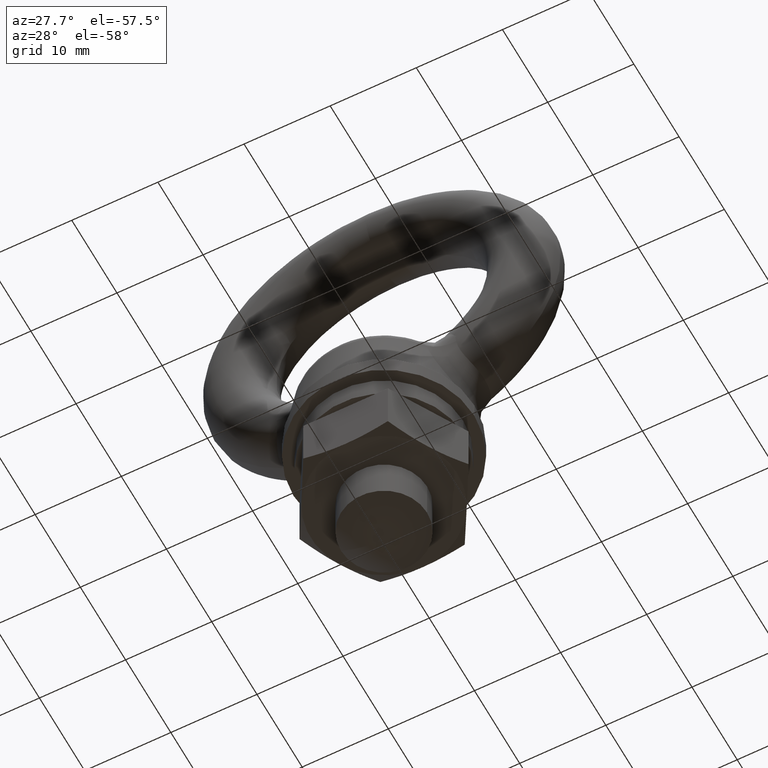
[diagram: clean part render]
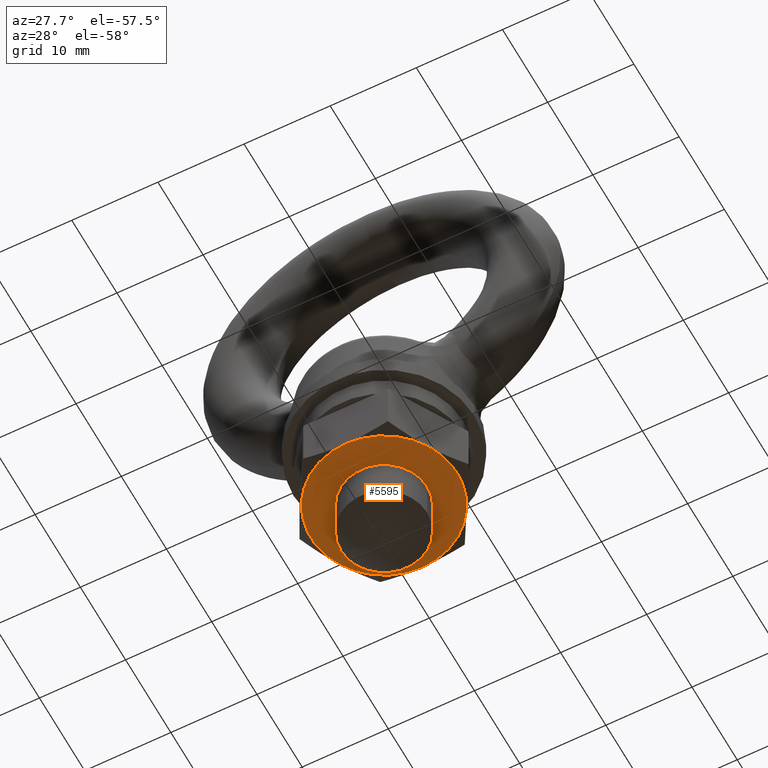
[diagram: same view with one face highlighted and labeled with its STEP entity id]
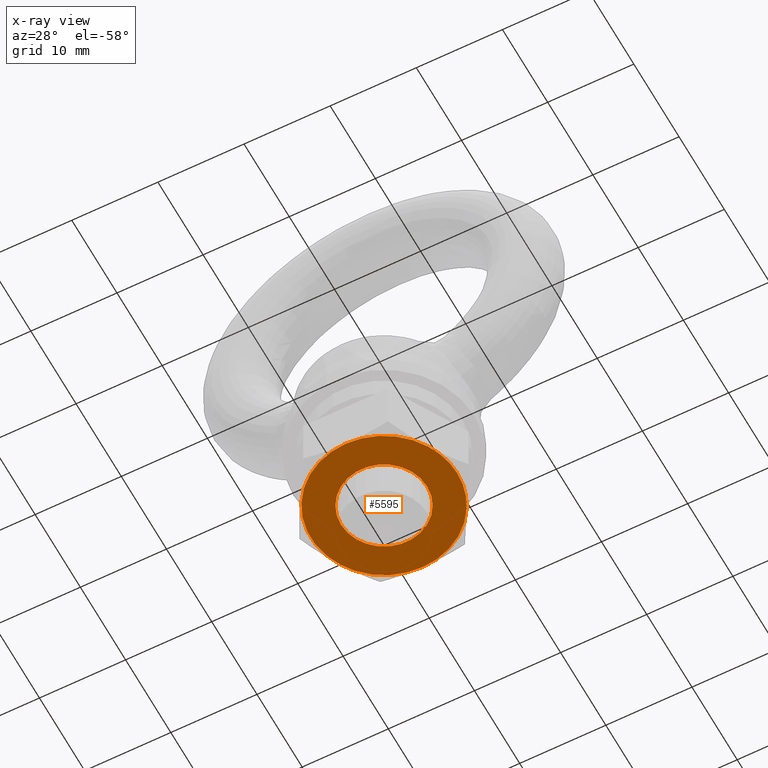
[diagram: x-ray of the same camera — body ghosted, the highlighted face saturated]
A machine part, auxiliary view. The second image highlights one B-rep face of the part: STEP entity #5595.
The next image is the same camera in x-ray: the body ghosted, the highlighted face saturated — about 0% of this face is hidden behind the body in this view.
In plain terms, the highlighted planar face has unit normal (0, 0, 1).
Its self-contained STEP definition (entity closure, byte-faithful):
#2118 = DIRECTION ( 'NONE',  ( 1.000000000000000000, -5.329070518200752200E-015, 0.0000000000000000000 ) ) ;
#2119 = DIRECTION ( 'NONE',  ( 0.0000000000000000000, 0.0000000000000000000, -1.000000000000000000 ) ) ;
#2120 = CARTESIAN_POINT ( 'NONE',  ( 0.0000000000000000000, 0.0000000000000000000, -32.50000000000000000 ) ) ;
#2121 = AXIS2_PLACEMENT_3D ( 'NONE', #2120, #2119, #2118 ) ;
#2122 = CIRCLE ( 'NONE', #2121, 8.500000000000000000 ) ;
#2297 = CARTESIAN_POINT ( 'NONE',  ( 0.0000000000000000000, 0.0000000000000000000, -32.50000000000000000 ) ) ;
#2325 = DIRECTION ( 'NONE',  ( 0.0000000000000000000, 0.0000000000000000000, -1.000000000000000000 ) ) ;
#2326 = AXIS2_PLACEMENT_3D ( 'NONE', #2297, #2325, #2602 ) ;
#2327 = CIRCLE ( 'NONE', #2326, 5.000000000000000000 ) ;
#2421 = CARTESIAN_POINT ( 'NONE',  ( 5.000000000000000000, 6.123031769111886300E-016, -32.50000000000000000 ) ) ;
#2602 = DIRECTION ( 'NONE',  ( 1.000000000000000000, 0.0000000000000000000, 0.0000000000000000000 ) ) ;
#2762 = CARTESIAN_POINT ( 'NONE',  ( -5.000000000000000000, 0.0000000000000000000, -32.50000000000000000 ) ) ;
#2823 = CARTESIAN_POINT ( 'NONE',  ( -7.361216790209609500, -4.249998513827519800, -32.50000000000000000 ) ) ;
#2824 = CARTESIAN_POINT ( 'NONE',  ( 0.0000000000000000000, 0.0000000000000000000, -32.50000000000000000 ) ) ;
#2825 = AXIS2_PLACEMENT_3D ( 'NONE', #2824, #2855, #2854 ) ;
#2826 = CIRCLE ( 'NONE', #2825, 8.500000000000000000 ) ;
#2852 = CARTESIAN_POINT ( 'NONE',  ( 7.361216790209609500, -4.249998513827519800, -32.50000000000000000 ) ) ;
#2853 = CARTESIAN_POINT ( 'NONE',  ( 8.500000000000000000, 0.0000000000000000000, -32.50000000000000000 ) ) ;
#2854 = DIRECTION ( 'NONE',  ( 1.000000000000000000, 0.0000000000000000000, 0.0000000000000000000 ) ) ;
#2855 = DIRECTION ( 'NONE',  ( 0.0000000000000000000, 0.0000000000000000000, -1.000000000000000000 ) ) ;
#3511 = DIRECTION ( 'NONE',  ( 1.000000000000000000, 0.0000000000000000000, 0.0000000000000000000 ) ) ;
#3512 = DIRECTION ( 'NONE',  ( 0.0000000000000000000, 0.0000000000000000000, -1.000000000000000000 ) ) ;
#3513 = CARTESIAN_POINT ( 'NONE',  ( 0.0000000000000000000, 0.0000000000000000000, -32.50000000000000000 ) ) ;
#3514 = AXIS2_PLACEMENT_3D ( 'NONE', #3513, #3512, #3511 ) ;
#3536 = FACE_OUTER_BOUND ( 'NONE', #5600, .T. ) ;
#3537 = FACE_BOUND ( 'NONE', #5596, .T. ) ;
#3598 = CIRCLE ( 'NONE', #3514, 5.000000000000000000 ) ;
#3599 = DIRECTION ( 'NONE',  ( 1.000000000000000000, 0.0000000000000000000, 0.0000000000000000000 ) ) ;
#3600 = DIRECTION ( 'NONE',  ( 0.0000000000000000000, 0.0000000000000000000, 1.000000000000000000 ) ) ;
#3601 = CARTESIAN_POINT ( 'NONE',  ( 0.0000000000000000000, 0.0000000000000000000, -32.50000000000000000 ) ) ;
#3602 = AXIS2_PLACEMENT_3D ( 'NONE', #3601, #3600, #3599 ) ;
#3603 = PLANE ( 'NONE',  #3602 ) ;
#4650 = DIRECTION ( 'NONE',  ( 1.000000000000000000, 1.776356839400250500E-015, 0.0000000000000000000 ) ) ;
#4651 = DIRECTION ( 'NONE',  ( 0.0000000000000000000, 0.0000000000000000000, -1.000000000000000000 ) ) ;
#4652 = CARTESIAN_POINT ( 'NONE',  ( 0.0000000000000000000, 0.0000000000000000000, -32.50000000000000000 ) ) ;
#4653 = AXIS2_PLACEMENT_3D ( 'NONE', #4652, #4651, #4650 ) ;
#4654 = CIRCLE ( 'NONE', #4653, 8.500000000000000000 ) ;
#4655 = DIRECTION ( 'NONE',  ( -1.000000000000000000, 0.0000000000000000000, 0.0000000000000000000 ) ) ;
#4656 = DIRECTION ( 'NONE',  ( 0.0000000000000000000, 0.0000000000000000000, -1.000000000000000000 ) ) ;
#4657 = CARTESIAN_POINT ( 'NONE',  ( 0.0000000000000000000, 0.0000000000000000000, -32.50000000000000000 ) ) ;
#4658 = AXIS2_PLACEMENT_3D ( 'NONE', #4657, #4656, #4655 ) ;
#4659 = CIRCLE ( 'NONE', #4658, 8.500000000000000000 ) ;
#4665 = CARTESIAN_POINT ( 'NONE',  ( 0.0000000000000000000, 8.500000000000000000, -32.50000000000000000 ) ) ;
#4679 = DIRECTION ( 'NONE',  ( 1.000000000000000000, 1.776356839400250500E-015, 0.0000000000000000000 ) ) ;
#4680 = DIRECTION ( 'NONE',  ( 0.0000000000000000000, 0.0000000000000000000, -1.000000000000000000 ) ) ;
#4681 = CARTESIAN_POINT ( 'NONE',  ( 0.0000000000000000000, 0.0000000000000000000, -32.50000000000000000 ) ) ;
#4682 = AXIS2_PLACEMENT_3D ( 'NONE', #4681, #4680, #4679 ) ;
#4683 = CIRCLE ( 'NONE', #4682, 8.500000000000000000 ) ;
#4684 = DIRECTION ( 'NONE',  ( 1.000000000000000000, 0.0000000000000000000, 0.0000000000000000000 ) ) ;
#4685 = DIRECTION ( 'NONE',  ( 0.0000000000000000000, 0.0000000000000000000, -1.000000000000000000 ) ) ;
#4686 = CARTESIAN_POINT ( 'NONE',  ( 0.0000000000000000000, 0.0000000000000000000, -32.50000000000000000 ) ) ;
#4687 = AXIS2_PLACEMENT_3D ( 'NONE', #4686, #4685, #4684 ) ;
#4688 = CIRCLE ( 'NONE', #4687, 8.500000000000000000 ) ;
#4689 = DIRECTION ( 'NONE',  ( 1.000000000000000000, 0.0000000000000000000, 0.0000000000000000000 ) ) ;
#4690 = DIRECTION ( 'NONE',  ( 0.0000000000000000000, 0.0000000000000000000, -1.000000000000000000 ) ) ;
#4691 = CARTESIAN_POINT ( 'NONE',  ( 0.0000000000000000000, 0.0000000000000000000, -32.50000000000000000 ) ) ;
#4692 = AXIS2_PLACEMENT_3D ( 'NONE', #4691, #4690, #4689 ) ;
#4694 = CIRCLE ( 'NONE', #4692, 8.500000000000000000 ) ;
#4705 = CARTESIAN_POINT ( 'NONE',  ( -7.361216790209609500, 4.249998513827519800, -32.50000000000000000 ) ) ;
#4791 = CARTESIAN_POINT ( 'NONE',  ( 7.361216790209609500, 4.249998513827519800, -32.50000000000000000 ) ) ;
#4843 = CARTESIAN_POINT ( 'NONE',  ( 0.0000000000000000000, -8.500000000000000000, -32.50000000000000000 ) ) ;
#5311 = ORIENTED_EDGE ( 'NONE', *, *, #5312, .T. ) ;
#5312 = EDGE_CURVE ( 'NONE', #5529, #5400, #2122, .T. ) ;
#5313 = ORIENTED_EDGE ( 'NONE', *, *, #5399, .T. ) ;
#5365 = ORIENTED_EDGE ( 'NONE', *, *, #5570, .T. ) ;
#5366 = VERTEX_POINT ( 'NONE', #2421 ) ;
#5368 = EDGE_CURVE ( 'NONE', #5366, #5369, #2327, .T. ) ;
#5369 = VERTEX_POINT ( 'NONE', #2762 ) ;
#5397 = VERTEX_POINT ( 'NONE', #2823 ) ;
#5399 = EDGE_CURVE ( 'NONE', #5400, #5401, #2826, .T. ) ;
#5400 = VERTEX_POINT ( 'NONE', #2853 ) ;
#5401 = VERTEX_POINT ( 'NONE', #2852 ) ;
#5513 = VERTEX_POINT ( 'NONE', #4843 ) ;
#5529 = VERTEX_POINT ( 'NONE', #4791 ) ;
#5557 = VERTEX_POINT ( 'NONE', #4665 ) ;
#5565 = VERTEX_POINT ( 'NONE', #4705 ) ;
#5570 = EDGE_CURVE ( 'NONE', #5401, #5513, #4694, .T. ) ;
#5571 = ORIENTED_EDGE ( 'NONE', *, *, #5572, .T. ) ;
#5572 = EDGE_CURVE ( 'NONE', #5513, #5397, #4688, .T. ) ;
#5573 = ORIENTED_EDGE ( 'NONE', *, *, #5574, .T. ) ;
#5574 = EDGE_CURVE ( 'NONE', #5397, #5565, #4683, .T. ) ;
#5575 = ORIENTED_EDGE ( 'NONE', *, *, #5576, .T. ) ;
#5576 = EDGE_CURVE ( 'NONE', #5565, #5557, #4659, .T. ) ;
#5577 = ORIENTED_EDGE ( 'NONE', *, *, #5578, .T. ) ;
#5578 = EDGE_CURVE ( 'NONE', #5557, #5529, #4654, .T. ) ;
#5595 = ADVANCED_FACE ( 'NONE', ( #3537, #3536 ), #3603, .F. ) ;
#5596 = EDGE_LOOP ( 'NONE', ( #5597, #5599 ) ) ;
#5597 = ORIENTED_EDGE ( 'NONE', *, *, #5598, .F. ) ;
#5598 = EDGE_CURVE ( 'NONE', #5369, #5366, #3598, .T. ) ;
#5599 = ORIENTED_EDGE ( 'NONE', *, *, #5368, .F. ) ;
#5600 = EDGE_LOOP ( 'NONE', ( #5311, #5313, #5365, #5571, #5573, #5575, #5577 ) ) ;